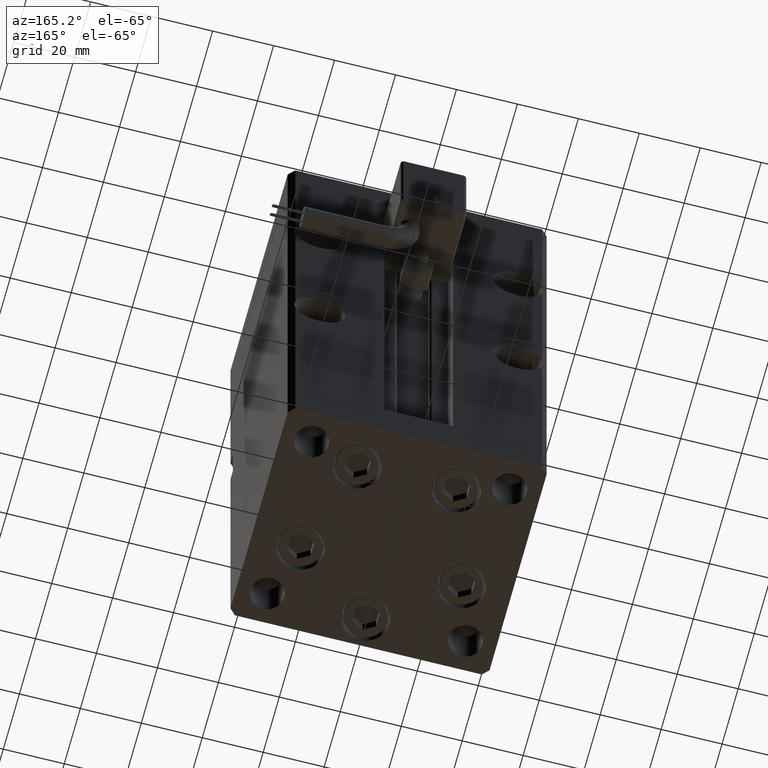
[diagram: clean part render]
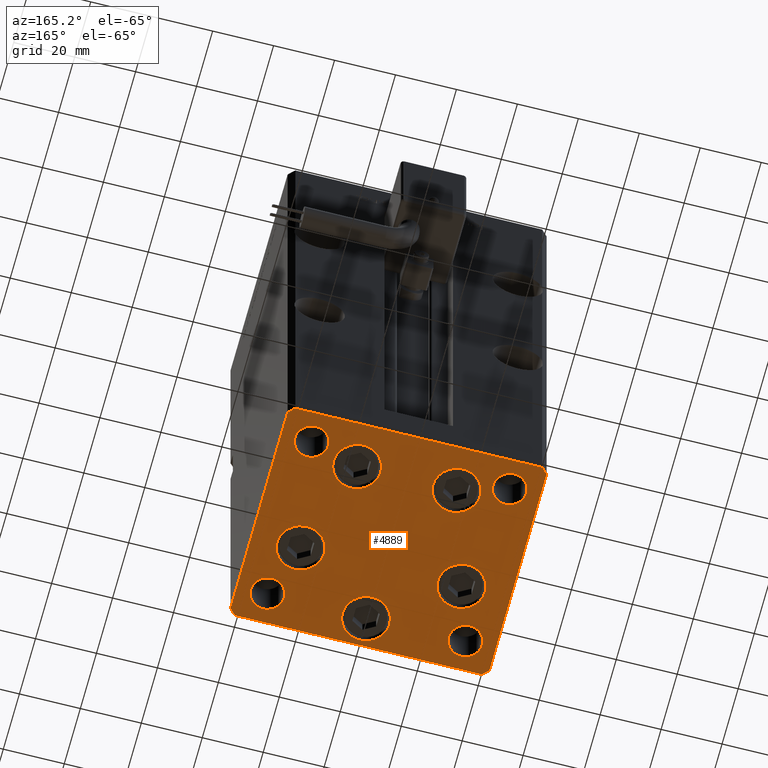
[diagram: same view with one face highlighted and labeled with its STEP entity id]
A machine part, auxiliary view. The second image highlights one B-rep face of the part: STEP entity #4889.
In plain terms, the highlighted planar face has unit normal (0, 0, -1).
Its self-contained STEP definition (entity closure, byte-faithful):
#41 = FACE_BOUND ( 'NONE', #52562, .T. ) ;
#246 = CARTESIAN_POINT ( 'NONE',  ( -38.00000000000000000, 27.50000000000000355, 0.000000000000000000 ) ) ;
#291 = CIRCLE ( 'NONE', #33853, 7.750000000000000000 ) ;
#350 = VERTEX_POINT ( 'NONE', #25953 ) ;
#512 = EDGE_CURVE ( 'NONE', #14983, #350, #46338, .T. ) ;
#851 = EDGE_CURVE ( 'NONE', #56022, #38301, #38070, .T. ) ;
#883 = FACE_BOUND ( 'NONE', #28575, .T. ) ;
#891 = AXIS2_PLACEMENT_3D ( 'NONE', #38976, #8034, #43230 ) ;
#1107 = EDGE_CURVE ( 'NONE', #22095, #19228, #3779, .T. ) ;
#1219 = VERTEX_POINT ( 'NONE', #10058 ) ;
#1251 = CARTESIAN_POINT ( 'NONE',  ( 3.429011037612589276E-15, -28.00000000000000000, 0.000000000000000000 ) ) ;
#1514 = DIRECTION ( 'NONE',  ( 1.000000000000000000, 0.000000000000000000, 0.000000000000000000 ) ) ;
#2016 = DIRECTION ( 'NONE',  ( -0.7071067811865463515, -0.7071067811865487940, 0.000000000000000000 ) ) ;
#2075 = EDGE_LOOP ( 'NONE', ( #15149, #34302 ) ) ;
#2107 = CARTESIAN_POINT ( 'NONE',  ( -24.07291334290543006, 22.74999999999999645, 0.000000000000000000 ) ) ;
#2485 = AXIS2_PLACEMENT_3D ( 'NONE', #44749, #20004, #15194 ) ;
#2844 = DIRECTION ( 'NONE',  ( 1.000000000000000000, 0.000000000000000000, 0.000000000000000000 ) ) ;
#3022 = ORIENTED_EDGE ( 'NONE', *, *, #1107, .T. ) ;
#3206 = CARTESIAN_POINT ( 'NONE',  ( 26.39865316429776954, -9.333333333333330373, 0.000000000000000000 ) ) ;
#3438 = AXIS2_PLACEMENT_3D ( 'NONE', #40680, #40405, #1514 ) ;
#3779 = CIRCLE ( 'NONE', #54528, 7.750000000000000000 ) ;
#3928 = CARTESIAN_POINT ( 'NONE',  ( 32.50000000000000000, 27.49999999999999645, 0.000000000000000000 ) ) ;
#4446 = CARTESIAN_POINT ( 'NONE',  ( 42.49999999999992895, 35.50000000000000000, 0.000000000000000000 ) ) ;
#4768 = CARTESIAN_POINT ( 'NONE',  ( -42.50000000000000000, -35.50000000000000711, 0.000000000000000000 ) ) ;
#4889 = ADVANCED_FACE ( 'NONE', ( #8838, #38935, #883, #41, #18191, #47744, #17350, #44032, #34675, #13932 ), #52569, .T. ) ;
#5166 = AXIS2_PLACEMENT_3D ( 'NONE', #34132, #21622, #12551 ) ;
#5352 = EDGE_CURVE ( 'NONE', #40296, #48650, #48180, .T. ) ;
#5394 = EDGE_LOOP ( 'NONE', ( #40340, #54283 ) ) ;
#5735 = CARTESIAN_POINT ( 'NONE',  ( -32.50000000000000000, -27.49999999999999645, 0.000000000000000000 ) ) ;
#5897 = EDGE_CURVE ( 'NONE', #54626, #30833, #19278, .T. ) ;
#6021 = EDGE_CURVE ( 'NONE', #350, #14983, #291, .T. ) ;
#6022 = DIRECTION ( 'NONE',  ( 1.000000000000000000, 0.000000000000000000, 0.000000000000000000 ) ) ;
#6052 = CARTESIAN_POINT ( 'NONE',  ( -7.749999999999996447, -28.00000000000000000, 0.000000000000000000 ) ) ;
#6063 = DIRECTION ( 'NONE',  ( 0.000000000000000000, -0.000000000000000000, -1.000000000000000000 ) ) ;
#6754 = DIRECTION ( 'NONE',  ( 1.000000000000000000, 0.000000000000000000, 0.000000000000000000 ) ) ;
#6983 = CIRCLE ( 'NONE', #2485, 5.499999999999998224 ) ;
#6988 = EDGE_CURVE ( 'NONE', #48650, #14138, #8021, .T. ) ;
#7568 = CIRCLE ( 'NONE', #17538, 7.750000000000000000 ) ;
#7935 = ORIENTED_EDGE ( 'NONE', *, *, #34930, .T. ) ;
#8021 = LINE ( 'NONE', #8590, #12078 ) ;
#8034 = DIRECTION ( 'NONE',  ( -0.000000000000000000, 0.000000000000000000, 1.000000000000000000 ) ) ;
#8484 = ORIENTED_EDGE ( 'NONE', *, *, #52982, .T. ) ;
#8590 = CARTESIAN_POINT ( 'NONE',  ( 40.49999999999991473, 37.50000000000000711, 0.000000000000000000 ) ) ;
#8773 = CIRCLE ( 'NONE', #5166, 7.750000000000003553 ) ;
#8801 = DIRECTION ( 'NONE',  ( -0.000000000000000000, 0.000000000000000000, 1.000000000000000000 ) ) ;
#8838 = FACE_BOUND ( 'NONE', #5394, .T. ) ;
#9159 = CARTESIAN_POINT ( 'NONE',  ( 24.07291334290542650, 22.75000000000000000, 0.000000000000000000 ) ) ;
#9229 = CARTESIAN_POINT ( 'NONE',  ( -42.50000000000000000, -35.50000000000000711, 0.000000000000000000 ) ) ;
#9452 = ORIENTED_EDGE ( 'NONE', *, *, #12434, .F. ) ;
#9897 = DIRECTION ( 'NONE',  ( 0.000000000000000000, -0.000000000000000000, -1.000000000000000000 ) ) ;
#10058 = CARTESIAN_POINT ( 'NONE',  ( 27.00000000000000355, 27.49999999999999645, 0.000000000000000000 ) ) ;
#10459 = CARTESIAN_POINT ( 'NONE',  ( -40.49999999999999289, -37.50000000000002132, 0.000000000000000000 ) ) ;
#10532 = CARTESIAN_POINT ( 'NONE',  ( -32.50000000000000000, -27.49999999999999645, 0.000000000000000000 ) ) ;
#10746 = AXIS2_PLACEMENT_3D ( 'NONE', #12559, #52039, #34420 ) ;
#11020 = EDGE_CURVE ( 'NONE', #24475, #44034, #7568, .T. ) ;
#11653 = CARTESIAN_POINT ( 'NONE',  ( -18.64865316429776954, -9.333333333333335702, 0.000000000000000000 ) ) ;
#12078 = VECTOR ( 'NONE', #25053, 1000.000000000000000 ) ;
#12434 = EDGE_CURVE ( 'NONE', #45553, #40666, #14078, .T. ) ;
#12440 = DIRECTION ( 'NONE',  ( 1.000000000000000000, 0.000000000000000000, 0.000000000000000000 ) ) ;
#12477 = CARTESIAN_POINT ( 'NONE',  ( 16.32291334290542295, 22.75000000000000000, 0.000000000000000000 ) ) ;
#12551 = DIRECTION ( 'NONE',  ( 1.000000000000000000, 0.000000000000000000, 0.000000000000000000 ) ) ;
#12559 = CARTESIAN_POINT ( 'NONE',  ( 32.50000000000000000, -27.49999999999999645, 0.000000000000000000 ) ) ;
#12932 = CARTESIAN_POINT ( 'NONE',  ( 38.00000000000000000, 27.49999999999999645, 0.000000000000000000 ) ) ;
#12937 = EDGE_CURVE ( 'NONE', #38301, #41491, #44144, .T. ) ;
#13658 = ORIENTED_EDGE ( 'NONE', *, *, #6021, .T. ) ;
#13813 = CARTESIAN_POINT ( 'NONE',  ( 42.50000000000000711, -35.50000000000000000, 0.000000000000000000 ) ) ;
#13932 = FACE_BOUND ( 'NONE', #2075, .T. ) ;
#14078 = CIRCLE ( 'NONE', #18614, 5.499999999999998224 ) ;
#14138 = VERTEX_POINT ( 'NONE', #52213 ) ;
#14288 = LINE ( 'NONE', #31605, #24315 ) ;
#14646 = EDGE_CURVE ( 'NONE', #29825, #35074, #37021, .T. ) ;
#14897 = CARTESIAN_POINT ( 'NONE',  ( 40.50000000000000000, -37.50000000000000711, 0.000000000000000000 ) ) ;
#14983 = VERTEX_POINT ( 'NONE', #28430 ) ;
#15128 = ORIENTED_EDGE ( 'NONE', *, *, #6988, .T. ) ;
#15149 = ORIENTED_EDGE ( 'NONE', *, *, #37762, .T. ) ;
#15194 = DIRECTION ( 'NONE',  ( 1.000000000000000000, 0.000000000000000000, 0.000000000000000000 ) ) ;
#15345 = EDGE_LOOP ( 'NONE', ( #9452, #52832 ) ) ;
#15377 = CARTESIAN_POINT ( 'NONE',  ( -16.32291334290543006, 22.74999999999999645, 0.000000000000000000 ) ) ;
#15448 = DIRECTION ( 'NONE',  ( 0.7071067811865474617, 0.7071067811865474617, 0.000000000000000000 ) ) ;
#15758 = EDGE_CURVE ( 'NONE', #28204, #54788, #50510, .T. ) ;
#16109 = CARTESIAN_POINT ( 'NONE',  ( 38.00000000000000000, -27.49999999999999645, 0.000000000000000000 ) ) ;
#16138 = CARTESIAN_POINT ( 'NONE',  ( -8.572913342905431833, 22.74999999999999645, 0.000000000000000000 ) ) ;
#16482 = DIRECTION ( 'NONE',  ( 9.773090005503140331E-17, -1.000000000000000000, 0.000000000000000000 ) ) ;
#16812 = CARTESIAN_POINT ( 'NONE',  ( -38.00000000000000000, -27.49999999999999645, 0.000000000000000000 ) ) ;
#17283 = ORIENTED_EDGE ( 'NONE', *, *, #19488, .T. ) ;
#17350 = FACE_BOUND ( 'NONE', #38803, .T. ) ;
#17538 = AXIS2_PLACEMENT_3D ( 'NONE', #1251, #6063, #18277 ) ;
#17800 = CARTESIAN_POINT ( 'NONE',  ( -27.00000000000000355, 27.50000000000000355, 0.000000000000000000 ) ) ;
#18191 = FACE_BOUND ( 'NONE', #20334, .T. ) ;
#18196 = EDGE_CURVE ( 'NONE', #40666, #45553, #33344, .T. ) ;
#18200 = VECTOR ( 'NONE', #16482, 1000.000000000000000 ) ;
#18277 = DIRECTION ( 'NONE',  ( 1.000000000000000000, 0.000000000000000000, 0.000000000000000000 ) ) ;
#18614 = AXIS2_PLACEMENT_3D ( 'NONE', #34914, #8801, #43431 ) ;
#18693 = DIRECTION ( 'NONE',  ( 1.000000000000000000, 1.713307136767217096E-16, 0.000000000000000000 ) ) ;
#18695 = ORIENTED_EDGE ( 'NONE', *, *, #47997, .T. ) ;
#18709 = VERTEX_POINT ( 'NONE', #16109 ) ;
#18731 = ORIENTED_EDGE ( 'NONE', *, *, #12937, .T. ) ;
#19041 = LINE ( 'NONE', #40901, #36107 ) ;
#19228 = VERTEX_POINT ( 'NONE', #32180 ) ;
#19278 = CIRCLE ( 'NONE', #40120, 7.750000000000003553 ) ;
#19438 = EDGE_CURVE ( 'NONE', #25649, #27331, #39721, .T. ) ;
#19488 = EDGE_CURVE ( 'NONE', #14138, #56022, #19041, .T. ) ;
#19959 = CIRCLE ( 'NONE', #51725, 5.499999999999998224 ) ;
#20004 = DIRECTION ( 'NONE',  ( 0.000000000000000000, -0.000000000000000000, -1.000000000000000000 ) ) ;
#20334 = EDGE_LOOP ( 'NONE', ( #8484, #3022 ) ) ;
#20758 = CARTESIAN_POINT ( 'NONE',  ( 42.49999999999992895, 35.50000000000000000, 0.000000000000000000 ) ) ;
#21090 = CARTESIAN_POINT ( 'NONE',  ( -27.00000000000000355, -27.49999999999999645, 0.000000000000000000 ) ) ;
#21622 = DIRECTION ( 'NONE',  ( 0.000000000000000000, -0.000000000000000000, -1.000000000000000000 ) ) ;
#22005 = DIRECTION ( 'NONE',  ( 0.7071067811865463515, -0.7071067811865487940, 0.000000000000000000 ) ) ;
#22042 = DIRECTION ( 'NONE',  ( -0.7071067811865474617, 0.7071067811865474617, 0.000000000000000000 ) ) ;
#22095 = VERTEX_POINT ( 'NONE', #11653 ) ;
#23180 = CARTESIAN_POINT ( 'NONE',  ( 40.50000000000000000, -37.50000000000000711, 0.000000000000000000 ) ) ;
#23416 = DIRECTION ( 'NONE',  ( 0.000000000000000000, -0.000000000000000000, -1.000000000000000000 ) ) ;
#23591 = DIRECTION ( 'NONE',  ( 0.000000000000000000, -0.000000000000000000, -1.000000000000000000 ) ) ;
#24315 = VECTOR ( 'NONE', #44393, 1000.000000000000000 ) ;
#24475 = VERTEX_POINT ( 'NONE', #36215 ) ;
#25053 = DIRECTION ( 'NONE',  ( -1.000000000000000000, -3.426614273534436165E-16, 0.000000000000000000 ) ) ;
#25260 = CIRCLE ( 'NONE', #55194, 7.750000000000000000 ) ;
#25649 = VERTEX_POINT ( 'NONE', #16812 ) ;
#25953 = CARTESIAN_POINT ( 'NONE',  ( 18.64865316429776954, -9.333333333333330373, 0.000000000000000000 ) ) ;
#26700 = ORIENTED_EDGE ( 'NONE', *, *, #5352, .T. ) ;
#27208 = ORIENTED_EDGE ( 'NONE', *, *, #5897, .T. ) ;
#27331 = VERTEX_POINT ( 'NONE', #21090 ) ;
#27393 = EDGE_CURVE ( 'NONE', #1219, #33050, #29910, .T. ) ;
#28121 = DIRECTION ( 'NONE',  ( 1.000000000000000000, 0.000000000000000000, 0.000000000000000000 ) ) ;
#28204 = VERTEX_POINT ( 'NONE', #2107 ) ;
#28430 = CARTESIAN_POINT ( 'NONE',  ( 34.14865316429776954, -9.333333333333328596, 0.000000000000000000 ) ) ;
#28575 = EDGE_LOOP ( 'NONE', ( #13658, #44167 ) ) ;
#29124 = EDGE_CURVE ( 'NONE', #33050, #1219, #19959, .T. ) ;
#29396 = EDGE_LOOP ( 'NONE', ( #18731, #7935, #50813, #47638, #26700, #15128, #17283, #48298 ) ) ;
#29825 = VERTEX_POINT ( 'NONE', #23180 ) ;
#29910 = CIRCLE ( 'NONE', #891, 5.499999999999998224 ) ;
#30105 = DIRECTION ( 'NONE',  ( 1.000000000000000000, 0.000000000000000000, 0.000000000000000000 ) ) ;
#30414 = DIRECTION ( 'NONE',  ( 1.000000000000000000, 0.000000000000000000, 0.000000000000000000 ) ) ;
#30520 = VECTOR ( 'NONE', #15448, 1000.000000000000114 ) ;
#30833 = VERTEX_POINT ( 'NONE', #55824 ) ;
#30971 = CARTESIAN_POINT ( 'NONE',  ( 0.000000000000000000, 0.000000000000000000, 0.000000000000000000 ) ) ;
#31068 = ORIENTED_EDGE ( 'NONE', *, *, #27393, .F. ) ;
#31605 = CARTESIAN_POINT ( 'NONE',  ( 42.50000000000000711, -35.50000000000000000, 0.000000000000000000 ) ) ;
#31939 = AXIS2_PLACEMENT_3D ( 'NONE', #30971, #48305, #30414 ) ;
#32180 = CARTESIAN_POINT ( 'NONE',  ( -34.14865316429776954, -9.333333333333337478, 0.000000000000000000 ) ) ;
#32456 = AXIS2_PLACEMENT_3D ( 'NONE', #10532, #40066, #28121 ) ;
#32698 = DIRECTION ( 'NONE',  ( 0.000000000000000000, -0.000000000000000000, -1.000000000000000000 ) ) ;
#33050 = VERTEX_POINT ( 'NONE', #12932 ) ;
#33344 = CIRCLE ( 'NONE', #3438, 5.499999999999998224 ) ;
#33853 = AXIS2_PLACEMENT_3D ( 'NONE', #49090, #9897, #6754 ) ;
#34023 = DIRECTION ( 'NONE',  ( -0.000000000000000000, 0.000000000000000000, 1.000000000000000000 ) ) ;
#34132 = CARTESIAN_POINT ( 'NONE',  ( 16.32291334290542295, 22.75000000000000000, 0.000000000000000000 ) ) ;
#34302 = ORIENTED_EDGE ( 'NONE', *, *, #19438, .T. ) ;
#34362 = EDGE_CURVE ( 'NONE', #54788, #28204, #48314, .T. ) ;
#34420 = DIRECTION ( 'NONE',  ( 1.000000000000000000, 0.000000000000000000, 0.000000000000000000 ) ) ;
#34675 = FACE_OUTER_BOUND ( 'NONE', #29396, .T. ) ;
#34914 = CARTESIAN_POINT ( 'NONE',  ( -32.50000000000000000, 27.50000000000000355, 0.000000000000000000 ) ) ;
#34930 = EDGE_CURVE ( 'NONE', #41491, #29825, #36305, .T. ) ;
#35074 = VERTEX_POINT ( 'NONE', #13813 ) ;
#35281 = ORIENTED_EDGE ( 'NONE', *, *, #11020, .T. ) ;
#35730 = CARTESIAN_POINT ( 'NONE',  ( -40.49999999999999289, -37.50000000000002132, 0.000000000000000000 ) ) ;
#35890 = CIRCLE ( 'NONE', #43148, 7.750000000000000000 ) ;
#36107 = VECTOR ( 'NONE', #2016, 1000.000000000000000 ) ;
#36215 = CARTESIAN_POINT ( 'NONE',  ( 7.750000000000003553, -28.00000000000000000, 0.000000000000000000 ) ) ;
#36305 = LINE ( 'NONE', #10459, #41036 ) ;
#36522 = CARTESIAN_POINT ( 'NONE',  ( -26.39865316429776954, -9.333333333333337478, 0.000000000000000000 ) ) ;
#37021 = LINE ( 'NONE', #14897, #30520 ) ;
#37069 = DIRECTION ( 'NONE',  ( 0.000000000000000000, -0.000000000000000000, -1.000000000000000000 ) ) ;
#37242 = AXIS2_PLACEMENT_3D ( 'NONE', #3206, #46654, #54895 ) ;
#37762 = EDGE_CURVE ( 'NONE', #27331, #25649, #54763, .T. ) ;
#38070 = LINE ( 'NONE', #46589, #18200 ) ;
#38301 = VERTEX_POINT ( 'NONE', #4768 ) ;
#38803 = EDGE_LOOP ( 'NONE', ( #51014, #41830 ) ) ;
#38935 = FACE_BOUND ( 'NONE', #48215, .T. ) ;
#38976 = CARTESIAN_POINT ( 'NONE',  ( 32.50000000000000000, 27.49999999999999645, 0.000000000000000000 ) ) ;
#39462 = CARTESIAN_POINT ( 'NONE',  ( -16.32291334290543006, 22.74999999999999645, 0.000000000000000000 ) ) ;
#39599 = AXIS2_PLACEMENT_3D ( 'NONE', #39462, #51145, #30105 ) ;
#39721 = CIRCLE ( 'NONE', #32456, 5.499999999999998224 ) ;
#40066 = DIRECTION ( 'NONE',  ( 0.000000000000000000, -0.000000000000000000, -1.000000000000000000 ) ) ;
#40093 = DIRECTION ( 'NONE',  ( 0.000000000000000000, -0.000000000000000000, -1.000000000000000000 ) ) ;
#40120 = AXIS2_PLACEMENT_3D ( 'NONE', #12477, #41734, #2844 ) ;
#40296 = VERTEX_POINT ( 'NONE', #20758 ) ;
#40340 = ORIENTED_EDGE ( 'NONE', *, *, #15758, .T. ) ;
#40381 = VECTOR ( 'NONE', #22005, 1000.000000000000000 ) ;
#40405 = DIRECTION ( 'NONE',  ( -0.000000000000000000, 0.000000000000000000, 1.000000000000000000 ) ) ;
#40452 = CARTESIAN_POINT ( 'NONE',  ( -42.50000000000000711, 35.49999999999997158, 0.000000000000000000 ) ) ;
#40666 = VERTEX_POINT ( 'NONE', #246 ) ;
#40680 = CARTESIAN_POINT ( 'NONE',  ( -32.50000000000000000, 27.50000000000000355, 0.000000000000000000 ) ) ;
#40901 = CARTESIAN_POINT ( 'NONE',  ( -40.50000000000000711, 37.49999999999997868, 0.000000000000000000 ) ) ;
#40905 = DIRECTION ( 'NONE',  ( 1.000000000000000000, 0.000000000000000000, 0.000000000000000000 ) ) ;
#41036 = VECTOR ( 'NONE', #18693, 1000.000000000000000 ) ;
#41491 = VERTEX_POINT ( 'NONE', #35730 ) ;
#41734 = DIRECTION ( 'NONE',  ( 0.000000000000000000, -0.000000000000000000, -1.000000000000000000 ) ) ;
#41830 = ORIENTED_EDGE ( 'NONE', *, *, #49737, .T. ) ;
#43148 = AXIS2_PLACEMENT_3D ( 'NONE', #48989, #23416, #53537 ) ;
#43230 = DIRECTION ( 'NONE',  ( 1.000000000000000000, 0.000000000000000000, 0.000000000000000000 ) ) ;
#43349 = EDGE_LOOP ( 'NONE', ( #51860, #31068 ) ) ;
#43431 = DIRECTION ( 'NONE',  ( 1.000000000000000000, 0.000000000000000000, 0.000000000000000000 ) ) ;
#44032 = FACE_BOUND ( 'NONE', #15345, .T. ) ;
#44034 = VERTEX_POINT ( 'NONE', #6052 ) ;
#44144 = LINE ( 'NONE', #9229, #40381 ) ;
#44167 = ORIENTED_EDGE ( 'NONE', *, *, #512, .T. ) ;
#44393 = DIRECTION ( 'NONE',  ( -1.172770800660376741E-15, 1.000000000000000000, 0.000000000000000000 ) ) ;
#44749 = CARTESIAN_POINT ( 'NONE',  ( 32.50000000000000000, -27.49999999999999645, 0.000000000000000000 ) ) ;
#45182 = CARTESIAN_POINT ( 'NONE',  ( -26.39865316429776954, -9.333333333333337478, 0.000000000000000000 ) ) ;
#45553 = VERTEX_POINT ( 'NONE', #17800 ) ;
#45604 = VECTOR ( 'NONE', #22042, 1000.000000000000114 ) ;
#45931 = EDGE_CURVE ( 'NONE', #44034, #24475, #35890, .T. ) ;
#46338 = CIRCLE ( 'NONE', #37242, 7.750000000000000000 ) ;
#46478 = AXIS2_PLACEMENT_3D ( 'NONE', #15377, #32698, #50314 ) ;
#46589 = CARTESIAN_POINT ( 'NONE',  ( -42.50000000000000711, 35.49999999999997158, 0.000000000000000000 ) ) ;
#46654 = DIRECTION ( 'NONE',  ( 0.000000000000000000, -0.000000000000000000, -1.000000000000000000 ) ) ;
#47638 = ORIENTED_EDGE ( 'NONE', *, *, #51704, .T. ) ;
#47744 = FACE_BOUND ( 'NONE', #43349, .T. ) ;
#47928 = VERTEX_POINT ( 'NONE', #55164 ) ;
#47997 = EDGE_CURVE ( 'NONE', #30833, #54626, #8773, .T. ) ;
#48180 = LINE ( 'NONE', #4446, #45604 ) ;
#48215 = EDGE_LOOP ( 'NONE', ( #18695, #27208 ) ) ;
#48298 = ORIENTED_EDGE ( 'NONE', *, *, #851, .T. ) ;
#48305 = DIRECTION ( 'NONE',  ( -0.000000000000000000, 0.000000000000000000, 1.000000000000000000 ) ) ;
#48314 = CIRCLE ( 'NONE', #46478, 7.750000000000000000 ) ;
#48650 = VERTEX_POINT ( 'NONE', #53898 ) ;
#48989 = CARTESIAN_POINT ( 'NONE',  ( 3.429011037612589276E-15, -28.00000000000000000, 0.000000000000000000 ) ) ;
#49057 = ORIENTED_EDGE ( 'NONE', *, *, #45931, .T. ) ;
#49090 = CARTESIAN_POINT ( 'NONE',  ( 26.39865316429776954, -9.333333333333330373, 0.000000000000000000 ) ) ;
#49591 = DIRECTION ( 'NONE',  ( 1.000000000000000000, 0.000000000000000000, 0.000000000000000000 ) ) ;
#49737 = EDGE_CURVE ( 'NONE', #47928, #18709, #6983, .T. ) ;
#50314 = DIRECTION ( 'NONE',  ( 1.000000000000000000, 0.000000000000000000, 0.000000000000000000 ) ) ;
#50510 = CIRCLE ( 'NONE', #39599, 7.750000000000000000 ) ;
#50644 = CIRCLE ( 'NONE', #10746, 5.499999999999998224 ) ;
#50813 = ORIENTED_EDGE ( 'NONE', *, *, #14646, .T. ) ;
#51014 = ORIENTED_EDGE ( 'NONE', *, *, #52818, .T. ) ;
#51145 = DIRECTION ( 'NONE',  ( 0.000000000000000000, -0.000000000000000000, -1.000000000000000000 ) ) ;
#51704 = EDGE_CURVE ( 'NONE', #35074, #40296, #14288, .T. ) ;
#51725 = AXIS2_PLACEMENT_3D ( 'NONE', #3928, #34023, #12440 ) ;
#51860 = ORIENTED_EDGE ( 'NONE', *, *, #29124, .F. ) ;
#52039 = DIRECTION ( 'NONE',  ( 0.000000000000000000, -0.000000000000000000, -1.000000000000000000 ) ) ;
#52213 = CARTESIAN_POINT ( 'NONE',  ( -40.50000000000000711, 37.49999999999997868, 0.000000000000000000 ) ) ;
#52562 = EDGE_LOOP ( 'NONE', ( #49057, #35281 ) ) ;
#52569 = PLANE ( 'NONE',  #31939 ) ;
#52818 = EDGE_CURVE ( 'NONE', #18709, #47928, #50644, .T. ) ;
#52832 = ORIENTED_EDGE ( 'NONE', *, *, #18196, .F. ) ;
#52975 = AXIS2_PLACEMENT_3D ( 'NONE', #5735, #40093, #6022 ) ;
#52982 = EDGE_CURVE ( 'NONE', #19228, #22095, #25260, .T. ) ;
#53537 = DIRECTION ( 'NONE',  ( 1.000000000000000000, 0.000000000000000000, 0.000000000000000000 ) ) ;
#53898 = CARTESIAN_POINT ( 'NONE',  ( 40.49999999999991473, 37.50000000000000711, 0.000000000000000000 ) ) ;
#54283 = ORIENTED_EDGE ( 'NONE', *, *, #34362, .T. ) ;
#54528 = AXIS2_PLACEMENT_3D ( 'NONE', #36522, #37069, #49591 ) ;
#54626 = VERTEX_POINT ( 'NONE', #9159 ) ;
#54763 = CIRCLE ( 'NONE', #52975, 5.499999999999998224 ) ;
#54788 = VERTEX_POINT ( 'NONE', #16138 ) ;
#54895 = DIRECTION ( 'NONE',  ( 1.000000000000000000, 0.000000000000000000, 0.000000000000000000 ) ) ;
#55164 = CARTESIAN_POINT ( 'NONE',  ( 27.00000000000000355, -27.49999999999999645, 0.000000000000000000 ) ) ;
#55194 = AXIS2_PLACEMENT_3D ( 'NONE', #45182, #23591, #40905 ) ;
#55824 = CARTESIAN_POINT ( 'NONE',  ( 8.572913342905422951, 22.75000000000000000, 0.000000000000000000 ) ) ;
#56022 = VERTEX_POINT ( 'NONE', #40452 ) ;